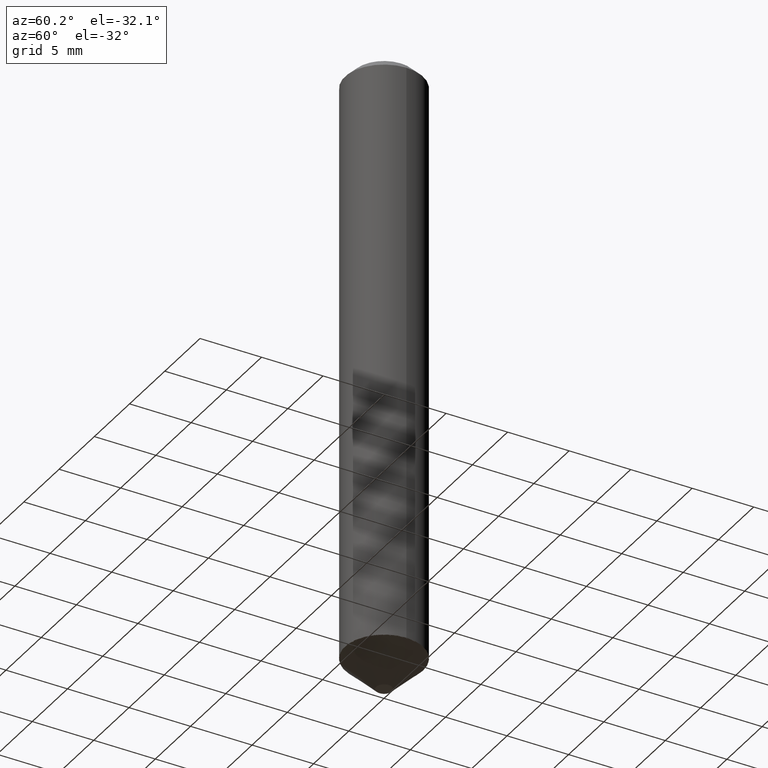
[diagram: clean part render]
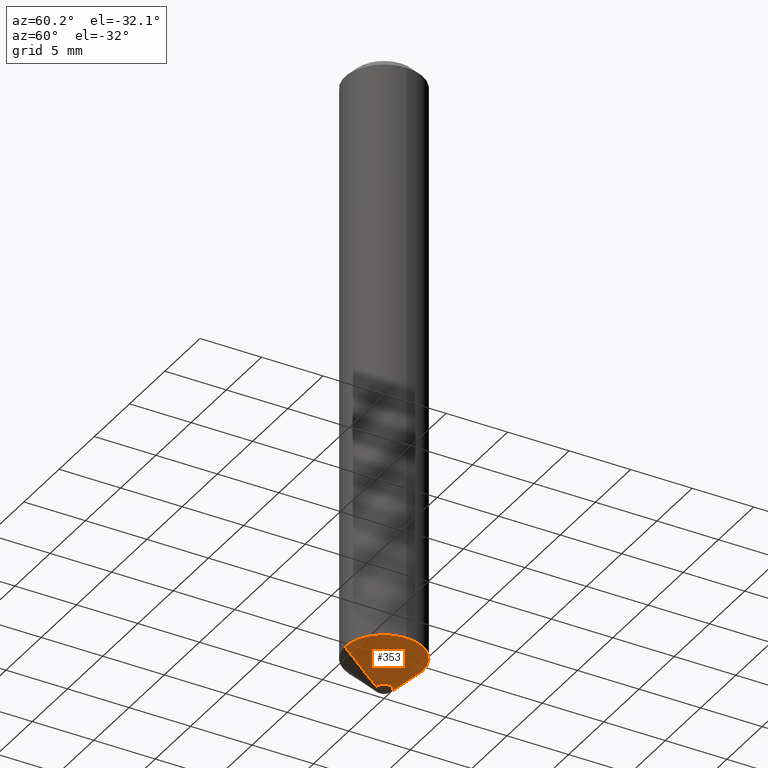
[diagram: same view with one face highlighted and labeled with its STEP entity id]
A machine part, auxiliary view. The second image highlights one B-rep face of the part: STEP entity #353.
In plain terms, the highlighted conical surface has half-angle 45.144 deg.
Its self-contained STEP definition (entity closure, byte-faithful):
#24 = CARTESIAN_POINT ( 'NONE',  ( 4.647607582958377980E-29, -6.635568709543598311E-15, -1.900499999999999856 ) ) ;
#35 = CARTESIAN_POINT ( 'NONE',  ( -5.237222008264224744E-16, -0.02500000000000698885, -2.000000000000000444 ) ) ;
#49 = EDGE_CURVE ( 'NONE', #308, #79, #317, .T. ) ;
#54 = EDGE_LOOP ( 'NONE', ( #249, #229, #311, #294 ) ) ;
#79 = VERTEX_POINT ( 'NONE', #364 ) ;
#81 = AXIS2_PLACEMENT_3D ( 'NONE', #109, #359, #341 ) ;
#91 = DIRECTION ( 'NONE',  ( -4.950059904243031787E-15, -0.7088767522788980147, 0.7053323685175109103 ) ) ;
#99 = VERTEX_POINT ( 'NONE', #35 ) ;
#109 = CARTESIAN_POINT ( 'NONE',  ( 4.647607582958377980E-29, -6.635568709543598311E-15, -1.900499999999999856 ) ) ;
#119 = CARTESIAN_POINT ( 'NONE',  ( 4.889760973075597116E-29, -6.984647692126418776E-15, -2.000000000000000444 ) ) ;
#127 = CIRCLE ( 'NONE', #307, 0.02500000000000000486 ) ;
#149 = DIRECTION ( 'NONE',  ( 6.982962677686266711E-15, 1.000000000000000000, 0.000000000000000000 ) ) ;
#155 = CONICAL_SURFACE ( 'NONE', #337, 0.1250000000000000278, 0.7879044238140346934 ) ;
#156 = DIRECTION ( 'NONE',  ( -2.433702413238368813E-29, 3.508331483244413410E-15, 1.000000000000000000 ) ) ;
#169 = EDGE_CURVE ( 'NONE', #308, #99, #127, .T. ) ;
#187 = CIRCLE ( 'NONE', #81, 0.1250000000000000278 ) ;
#192 = CARTESIAN_POINT ( 'NONE',  ( 5.329070518201229444E-16, 0.02499999999999302433, -2.000000000000000444 ) ) ;
#201 = VECTOR ( 'NONE', #412, 39.37007874015748143 ) ;
#229 = ORIENTED_EDGE ( 'NONE', *, *, #49, .T. ) ;
#235 = EDGE_CURVE ( 'NONE', #79, #277, #187, .T. ) ;
#241 = DIRECTION ( 'NONE',  ( 2.433702413238368813E-29, -3.508331483244413410E-15, -1.000000000000000000 ) ) ;
#249 = ORIENTED_EDGE ( 'NONE', *, *, #169, .F. ) ;
#256 = DIRECTION ( 'NONE',  ( -6.982962677686265922E-15, -1.000000000000000000, 4.370956789862820361E-15 ) ) ;
#277 = VERTEX_POINT ( 'NONE', #338 ) ;
#287 = LINE ( 'NONE', #411, #343 ) ;
#294 = ORIENTED_EDGE ( 'NONE', *, *, #383, .F. ) ;
#307 = AXIS2_PLACEMENT_3D ( 'NONE', #119, #241, #149 ) ;
#308 = VERTEX_POINT ( 'NONE', #192 ) ;
#311 = ORIENTED_EDGE ( 'NONE', *, *, #235, .T. ) ;
#313 = FACE_OUTER_BOUND ( 'NONE', #54, .T. ) ;
#317 = LINE ( 'NONE', #345, #201 ) ;
#337 = AXIS2_PLACEMENT_3D ( 'NONE', #24, #156, #256 ) ;
#338 = CARTESIAN_POINT ( 'NONE',  ( -8.575622497213958886E-16, -0.1250000000000068001, -1.900499999999999412 ) ) ;
#341 = DIRECTION ( 'NONE',  ( 6.982962677686265922E-15, 1.000000000000000000, -4.370956789862820361E-15 ) ) ;
#343 = VECTOR ( 'NONE', #91, 39.37007874015748143 ) ;
#345 = CARTESIAN_POINT ( 'NONE',  ( 8.881784197001717751E-16, 0.1249999999999933942, -1.900500000000000300 ) ) ;
#353 = ADVANCED_FACE ( 'NONE', ( #313 ), #155, .T. ) ;
#359 = DIRECTION ( 'NONE',  ( 2.433702413238368813E-29, -3.508331483244413410E-15, -1.000000000000000000 ) ) ;
#364 = CARTESIAN_POINT ( 'NONE',  ( 8.728703347108291914E-16, 0.1249999999999932693, -1.900500000000000300 ) ) ;
#383 = EDGE_CURVE ( 'NONE', #99, #277, #287, .T. ) ;
#411 = CARTESIAN_POINT ( 'NONE',  ( -8.728703347107369932E-16, -0.1250000000000066613, -1.900499999999999412 ) ) ;
#412 = DIRECTION ( 'NONE',  ( 5.036872268809829504E-15, 0.7088767522789028996, 0.7053323685175060254 ) ) ;